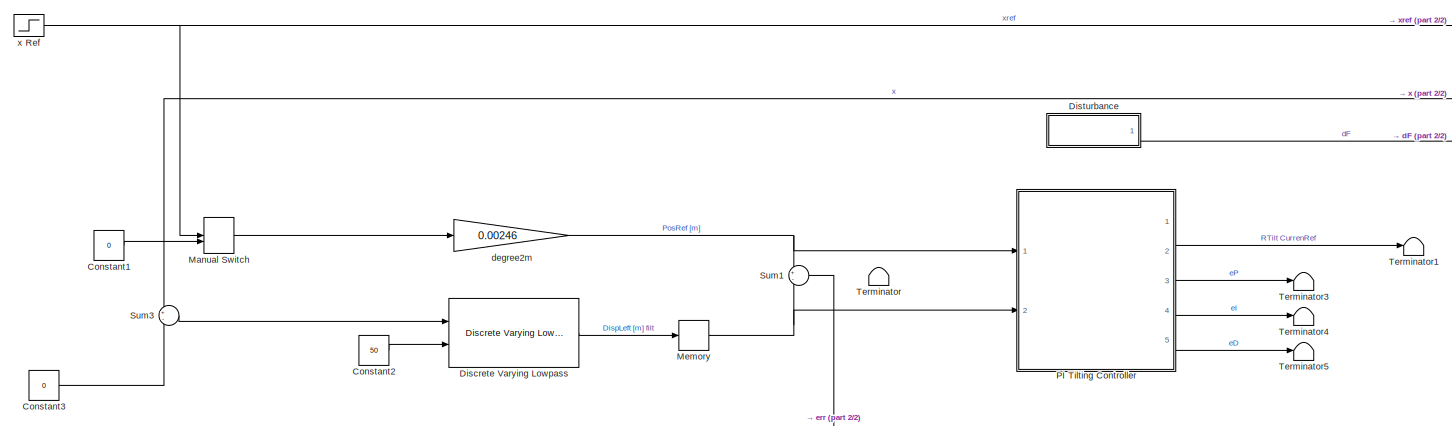
[diagram: root canvas - part 1/2, central region]
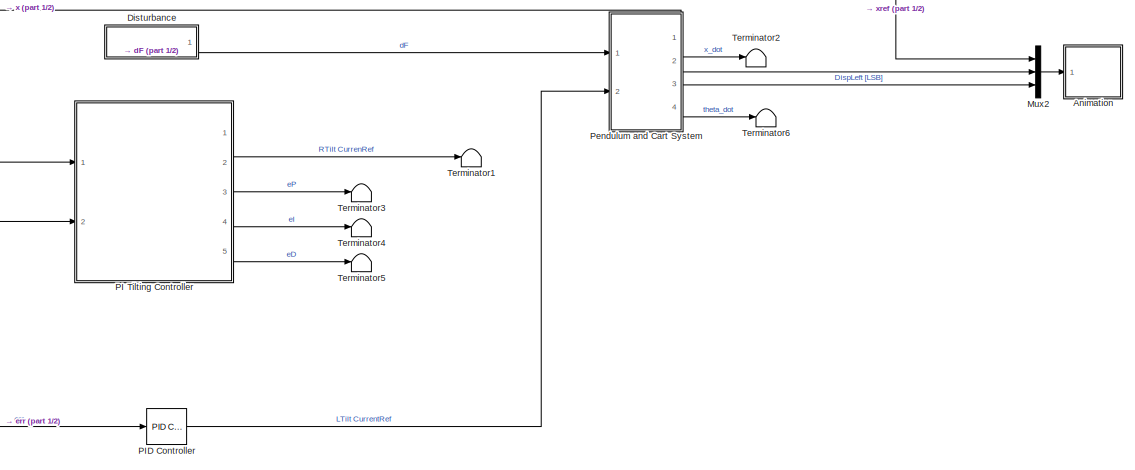
[diagram: root canvas - part 2/2, right side, full height]
MODEL slx_ad725aeea6b5
KIND model
CONFIG AbsTol = auto
CONFIG EnableMultiTasking = off
CONFIG FixedStep = 0.001
CONFIG MaxStep = auto
CONFIG MinStep = auto
CONFIG RelTol = 1e-3
CONFIG SampleTimeConstraint = Unconstrained
CONFIG Solver = ode5
CONFIG SolverName = ode5
CONFIG StartTime = 0.0
CONFIG StopTime = 50
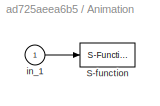
BLOCK [SubSystem] Animation
  Ports = [1]
  RequestExecContextInheritance = off
BLOCK [S-Function] Animation/S-function
  DeleteFcn = pendcartAnimation([],[],[],'DeleteBlock');
  EnableBusSupport = off
  FunctionName = pendcartAnimation
  Parameters = RefBlock
  Ports = [1]
  SFcnIsStateOwnerBlock = off
  SFunctionDeploymentMode = off
BLOCK [Inport] Animation/in_1
  IconDisplay = Port number
BLOCK [Constant] Constant1
  Value = 0
BLOCK [Constant] Constant2
  Value = 50
BLOCK [Constant] Constant3
  Value = 0
BLOCK [Reference] Discrete Varying Lowpass  REF=cstblocks/Linear Parameter Varying/Discrete Varying Lowpass
  Ports = [2, 1]
  SourceBlock = cstblocks/Linear Parameter Varying/Discrete Varying Lowpass
  SourceProductBaseCode = CT
  SourceProductName = Control System Toolbox
  SourceType = Discrete Varying Lowpass
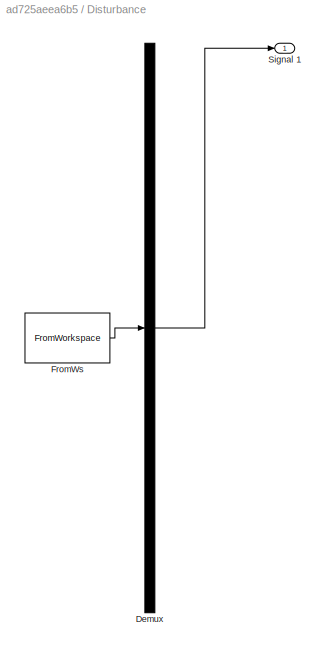
BLOCK [SubSystem] Disturbance
  ClipboardFcn = sigbuilder_block('clipboard');
  CloseFcn = sigbuilder_block('close');
  ContinueFcn = sigbuilder_block('continue');
  CopyFcn = sigbuilder_block('copy');
  DeleteFcn = sigbuilder_block('delete');
  LoadFcn = sigbuilder_block('load');
  MaskHideContents = on
  ModelCloseFcn = sigbuilder_block('modelClose');
  NameChangeFcn = sigbuilder_block('namechange');
  OpenFcn = sigbuilder_block('open',[402.828 199.862 551.172 395.379 ]);
  PauseFcn = sigbuilder_block('pause');
  Ports = [0, 1]
  PreSaveFcn = sigbuilder_block('preSave');
  RequestExecContextInheritance = off
  StartFcn = sigbuilder_block('start');
  StopFcn = sigbuilder_block('stop');
  Tag = STV Subsys
BLOCK [Demux] Disturbance/Demux
  Outputs = 1
  Ports = [1, 1]
  Tag = STV Demux
BLOCK [FromWorkspace] Disturbance/FromWs
  SampleTime = 0
  Tag = STV FromWs
  VariableName = tuvar
  ZeroCross = on
BLOCK [Outport] Disturbance/Signal 1
  IconDisplay = Port number
  Tag = STV Outport
BLOCK [ManualSwitch] Manual Switch
BLOCK [Memory] Memory
  InheritSampleTime = on
BLOCK [Mux] Mux2
  DisplayOption = bar
  Inputs = 3
  Ports = [3, 1]
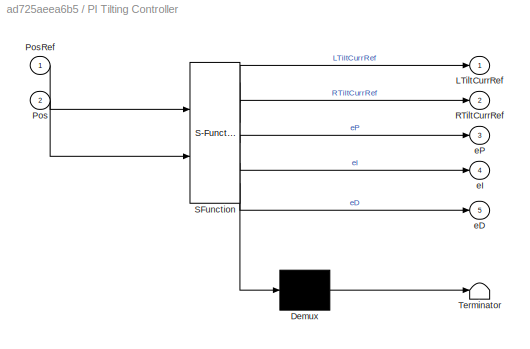
BLOCK [SubSystem] PI Tilting Controller
  Commented = on
  ErrorFcn = Stateflow.Translate.translate
  PermitHierarchicalResolution = ExplicitOnly
  Ports = [2, 5]
  RequestExecContextInheritance = off
  SFBlockType = MATLAB Function
  SystemSampleTime = 5e-3
  TreatAsAtomicUnit = on
BLOCK [Demux] PI Tilting Controller/ Demux 
  Outputs = 1
  Ports = [1, 1]
BLOCK [S-Function] PI Tilting Controller/ SFunction 
  EnableBusSupport = on
  FunctionName = sf_sfun
  PortCounts = [2 6]
  Ports = [2, 6]
  SFcnIsStateOwnerBlock = off
  SFunctionDeploymentMode = off
  Tag = Stateflow S-Function test_pendul 10
BLOCK [Terminator] PI Tilting Controller/ Terminator 
BLOCK [Outport] PI Tilting Controller/LTiltCurrRef
  IconDisplay = Port number
BLOCK [Inport] PI Tilting Controller/Pos
  IconDisplay = Port number
  Port = 2
BLOCK [Inport] PI Tilting Controller/PosRef
  IconDisplay = Port number
BLOCK [Outport] PI Tilting Controller/RTiltCurrRef
  IconDisplay = Port number
  Port = 2
BLOCK [Outport] PI Tilting Controller/eD
  IconDisplay = Port number
  Port = 5
BLOCK [Outport] PI Tilting Controller/eI
  IconDisplay = Port number
  Port = 4
BLOCK [Outport] PI Tilting Controller/eP
  IconDisplay = Port number
  Port = 3
BLOCK [Reference] PID Controller  REF=simulink/Continuous/PID Controller
  Ports = [1, 1]
  SourceBlock = simulink/Continuous/PID Controller
  SourceProductBaseCode = SL
  SourceProductName = Simulink
  SourceType = PID 1dof
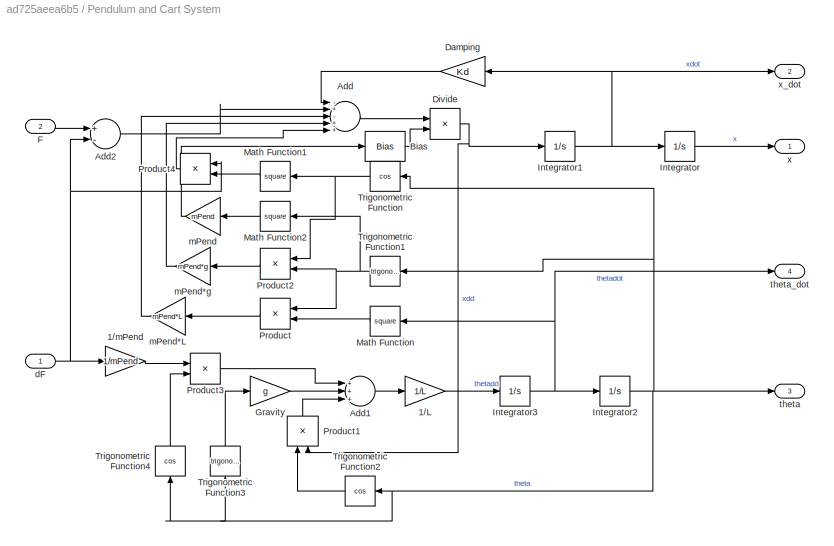
BLOCK [SubSystem] Pendulum and Cart System
  Ports = [2, 4]
  RequestExecContextInheritance = off
BLOCK [Gain] Pendulum and Cart System/1//L
  Gain = 1/L
  OutDataTypeStr = Inherit: Inherit via internal rule
  ParamDataTypeStr = Inherit: Inherit via internal rule
  SaturateOnIntegerOverflow = off
BLOCK [Gain] Pendulum and Cart System/1//mPend
  Gain = 1/mPend
  OutDataTypeStr = Inherit: Inherit via internal rule
  ParamDataTypeStr = Inherit: Inherit via internal rule
  SaturateOnIntegerOverflow = off
BLOCK [Sum] Pendulum and Cart System/Add
  InputSameDT = off
  Inputs = -+-++
  OutDataTypeStr = Inherit: Inherit via internal rule
  Ports = [5, 1]
  SaturateOnIntegerOverflow = off
BLOCK [Sum] Pendulum and Cart System/Add1
  InputSameDT = off
  Inputs = +++
  OutDataTypeStr = Inherit: Inherit via internal rule
  Ports = [3, 1]
  SaturateOnIntegerOverflow = off
BLOCK [Sum] Pendulum and Cart System/Add2
  InputSameDT = off
  Inputs = +-
  OutDataTypeStr = Inherit: Inherit via internal rule
  Ports = [2, 1]
  SaturateOnIntegerOverflow = off
BLOCK [Bias] Pendulum and Cart System/Bias
  Bias = mCart
  SaturateOnIntegerOverflow = off
BLOCK [Gain] Pendulum and Cart System/Damping
  Gain = Kd
  OutDataTypeStr = Inherit: Inherit via internal rule
  ParamDataTypeStr = Inherit: Inherit via internal rule
  SaturateOnIntegerOverflow = off
BLOCK [Product] Pendulum and Cart System/Divide
  InputSameDT = off
  Inputs = */
  OutDataTypeStr = Inherit: Inherit via internal rule
  Ports = [2, 1]
  RndMeth = Floor
  SaturateOnIntegerOverflow = off
BLOCK [Inport] Pendulum and Cart System/F
  IconDisplay = Port number
  Port = 2
BLOCK [Gain] Pendulum and Cart System/Gravity
  Gain = g
  OutDataTypeStr = Inherit: Inherit via internal rule
  ParamDataTypeStr = Inherit: Inherit via internal rule
  SaturateOnIntegerOverflow = off
BLOCK [Integrator] Pendulum and Cart System/Integrator
  ContinuousStateAttributes = 'x'
  Ports = [1, 1]
BLOCK [Integrator] Pendulum and Cart System/Integrator1
  ContinuousStateAttributes = 'xdot'
  Ports = [1, 1]
BLOCK [Integrator] Pendulum and Cart System/Integrator2
  ContinuousStateAttributes = 'theta'
  Ports = [1, 1]
BLOCK [Integrator] Pendulum and Cart System/Integrator3
  ContinuousStateAttributes = 'thetadot'
  Ports = [1, 1]
BLOCK [Math] Pendulum and Cart System/Math Function
  Operator = square
  Ports = [1, 1]
BLOCK [Math] Pendulum and Cart System/Math Function1
  Operator = square
  Ports = [1, 1]
BLOCK [Math] Pendulum and Cart System/Math Function2
  Operator = square
  Ports = [1, 1]
BLOCK [Product] Pendulum and Cart System/Product
  InputSameDT = off
  OutDataTypeStr = Inherit: Inherit via internal rule
  Ports = [2, 1]
  RndMeth = Floor
  SaturateOnIntegerOverflow = off
BLOCK [Product] Pendulum and Cart System/Product1
  InputSameDT = off
  OutDataTypeStr = Inherit: Inherit via internal rule
  Ports = [2, 1]
  RndMeth = Floor
  SaturateOnIntegerOverflow = off
BLOCK [Product] Pendulum and Cart System/Product2
  InputSameDT = off
  OutDataTypeStr = Inherit: Inherit via internal rule
  Ports = [2, 1]
  RndMeth = Floor
  SaturateOnIntegerOverflow = off
BLOCK [Product] Pendulum and Cart System/Product3
  InputSameDT = off
  OutDataTypeStr = Inherit: Inherit via internal rule
  Ports = [2, 1]
  RndMeth = Floor
  SaturateOnIntegerOverflow = off
BLOCK [Product] Pendulum and Cart System/Product4
  InputSameDT = off
  OutDataTypeStr = Inherit: Inherit via internal rule
  Ports = [2, 1]
  RndMeth = Floor
  SaturateOnIntegerOverflow = off
BLOCK [Trigonometry] Pendulum and Cart System/Trigonometric Function
  Operator = cos
  Ports = [1, 1]
BLOCK [Trigonometry] Pendulum and Cart System/Trigonometric Function1
  Ports = [1, 1]
BLOCK [Trigonometry] Pendulum and Cart System/Trigonometric Function2
  Operator = cos
  Ports = [1, 1]
BLOCK [Trigonometry] Pendulum and Cart System/Trigonometric Function3
  Ports = [1, 1]
BLOCK [Trigonometry] Pendulum and Cart System/Trigonometric Function4
  Operator = cos
  Ports = [1, 1]
BLOCK [Inport] Pendulum and Cart System/dF
  IconDisplay = Port number
BLOCK [Gain] Pendulum and Cart System/mPend
  Gain = mPend
  OutDataTypeStr = Inherit: Inherit via internal rule
  ParamDataTypeStr = Inherit: Inherit via internal rule
  SaturateOnIntegerOverflow = off
BLOCK [Gain] Pendulum and Cart System/mPend*L
  Gain = mPend*L
  OutDataTypeStr = Inherit: Inherit via internal rule
  ParamDataTypeStr = Inherit: Inherit via internal rule
  SaturateOnIntegerOverflow = off
BLOCK [Gain] Pendulum and Cart System/mPend*g
  Gain = mPend*g
  OutDataTypeStr = Inherit: Inherit via internal rule
  ParamDataTypeStr = Inherit: Inherit via internal rule
  SaturateOnIntegerOverflow = off
BLOCK [Outport] Pendulum and Cart System/theta
  IconDisplay = Port number
  Port = 3
BLOCK [Outport] Pendulum and Cart System/theta_dot
  IconDisplay = Port number
  Port = 4
BLOCK [Outport] Pendulum and Cart System/x
  IconDisplay = Port number
BLOCK [Outport] Pendulum and Cart System/x_dot
  IconDisplay = Port number
  Port = 2
BLOCK [Sum] Sum1
  IconShape = round
  InputSameDT = off
  Inputs = +-
  OutDataTypeStr = Inherit: Inherit via internal rule
  Ports = [2, 1]
  SaturateOnIntegerOverflow = off
BLOCK [Sum] Sum3
  IconShape = round
  InputSameDT = off
  Inputs = +-
  OutDataTypeStr = Inherit: Inherit via internal rule
  Ports = [2, 1]
  SaturateOnIntegerOverflow = off
BLOCK [Terminator] Terminator
BLOCK [Terminator] Terminator1
BLOCK [Terminator] Terminator2
BLOCK [Terminator] Terminator3
BLOCK [Terminator] Terminator4
BLOCK [Terminator] Terminator5
BLOCK [Terminator] Terminator6
BLOCK [Gain] degree2m
  Gain = 0.00246
  OutDataTypeStr = Inherit: Inherit via internal rule
  ParamDataTypeStr = Inherit: Inherit via internal rule
  SaturateOnIntegerOverflow = off
BLOCK [Step] x Ref
  After = 10
  SampleTime = 0
LINE Animation/in_1:1 -> Animation/S-function:1
LINE Constant1:1 -> Manual Switch:2
LINE Constant2:1 -> Discrete Varying Lowpass:2
LINE Constant3:1 -> Sum3:2
LINE Discrete Varying Lowpass:1 -> Memory:1
LINE Disturbance:1 -> Pendulum and Cart System:1
LINE Manual Switch:1 -> degree2m:1
NET Memory:1 -> PI Tilting Controller:2, Sum1:2
LINE Mux2:1 -> Animation:1
LINE PI Tilting Controller:2 -> Terminator1:1
LINE PI Tilting Controller:3 -> Terminator3:1
LINE PI Tilting Controller:4 -> Terminator4:1
LINE PI Tilting Controller:5 -> Terminator5:1
LINE PID Controller:1 -> Pendulum and Cart System:2
LINE Pendulum and Cart System/1//L:1 -> Pendulum and Cart System/Integrator3:1
LINE Pendulum and Cart System/1//mPend:1 -> Pendulum and Cart System/Product3:1
LINE Pendulum and Cart System/Add1:1 -> Pendulum and Cart System/1//L:1
LINE Pendulum and Cart System/Add2:1 -> Pendulum and Cart System/Add:2
LINE Pendulum and Cart System/Add:1 -> Pendulum and Cart System/Divide:1
LINE Pendulum and Cart System/Bias:1 -> Pendulum and Cart System/Divide:2
LINE Pendulum and Cart System/Damping:1 -> Pendulum and Cart System/Add:1
NET Pendulum and Cart System/Divide:1 -> Pendulum and Cart System/Integrator1:1, Pendulum and Cart System/Product1:2
LINE Pendulum and Cart System/F:1 -> Pendulum and Cart System/Add2:1
LINE Pendulum and Cart System/Gravity:1 -> Pendulum and Cart System/Add1:2
NET Pendulum and Cart System/Integrator1:1 -> Pendulum and Cart System/Damping:1, Pendulum and Cart System/Integrator:1, Pendulum and Cart System/x_dot:1
NET Pendulum and Cart System/Integrator2:1 -> Pendulum and Cart System/Trigonometric Function1:1, Pendulum and Cart System/Trigonometric Function2:1, Pendulum and Cart System/Trigonometric Function3:1, Pendulum and Cart System/Trigonometric Function4:1, Pendulum and Cart System/Trigonometric Function:1, Pendulum and Cart System/theta:1
NET Pendulum and Cart System/Integrator3:1 -> Pendulum and Cart System/Integrator2:1, Pendulum and Cart System/Math Function:1, Pendulum and Cart System/theta_dot:1
LINE Pendulum and Cart System/Integrator:1 -> Pendulum and Cart System/x:1
LINE Pendulum and Cart System/Math Function1:1 -> Pendulum and Cart System/Product4:2
LINE Pendulum and Cart System/Math Function2:1 -> Pendulum and Cart System/mPend:1
LINE Pendulum and Cart System/Math Function:1 -> Pendulum and Cart System/Product:2
LINE Pendulum and Cart System/Product1:1 -> Pendulum and Cart System/Add1:3
LINE Pendulum and Cart System/Product2:1 -> Pendulum and Cart System/mPend*g:1
LINE Pendulum and Cart System/Product3:1 -> Pendulum and Cart System/Add1:1
LINE Pendulum and Cart System/Product4:1 -> Pendulum and Cart System/Add:5
LINE Pendulum and Cart System/Product:1 -> Pendulum and Cart System/mPend*L:1
NET Pendulum and Cart System/Trigonometric Function1:1 -> Pendulum and Cart System/Math Function2:1, Pendulum and Cart System/Product2:2, Pendulum and Cart System/Product:1
LINE Pendulum and Cart System/Trigonometric Function2:1 -> Pendulum and Cart System/Product1:1
LINE Pendulum and Cart System/Trigonometric Function3:1 -> Pendulum and Cart System/Gravity:1
LINE Pendulum and Cart System/Trigonometric Function4:1 -> Pendulum and Cart System/Product3:2
NET Pendulum and Cart System/Trigonometric Function:1 -> Pendulum and Cart System/Math Function1:1, Pendulum and Cart System/Product2:1
NET Pendulum and Cart System/dF:1 -> Pendulum and Cart System/1//mPend:1, Pendulum and Cart System/Add2:2, Pendulum and Cart System/Product4:1
LINE Pendulum and Cart System/mPend*L:1 -> Pendulum and Cart System/Add:3
LINE Pendulum and Cart System/mPend*g:1 -> Pendulum and Cart System/Add:4
LINE Pendulum and Cart System/mPend:1 -> Pendulum and Cart System/Bias:1
NET Pendulum and Cart System:1 -> Mux2:2, Sum3:1
LINE Pendulum and Cart System:2 -> Terminator2:1
LINE Pendulum and Cart System:3 -> Mux2:3
LINE Pendulum and Cart System:4 -> Terminator6:1
LINE Sum1:1 -> PID Controller:1
LINE Sum3:1 -> Discrete Varying Lowpass:1
NET degree2m:1 -> PI Tilting Controller:1, Sum1:1
NET x Ref:1 -> Manual Switch:1, Mux2:1
note: NET lines group one-source signal fan-out (src -> all destinations, sorted); 1:1 wires keep LINE
CHART PI Tilting Controller states=1 transitions=1
  STATE_LABEL 'eML_blk_kernel()'
  STATE_LABEL 'SCRIPT:\nfunction [LTiltCurrRef, RTiltCurrRef,eP,eI,eD] = fcn(PosRef,Pos)\npersistent uk1 ek1 ek2\nif (isempty(uk1))\n    uk1 = 0;\n    ek1 = 0;\n    ek2 = 0;\nend\n\n% +/- 0.076 m\npos_lim = 0.02;\nimax = 5;\n\nKp =20;\nKi = 0.1;\nKd = 10;\n\nif (PosRef > pos_lim)\n    PosRef = pos_lim;\nend\nif (PosRef <- pos_lim)\n   PosRef = -pos_lim;\nend\n\ne = PosRef - Pos;\n\n\nDu = Ki * e + Kp * (e - ek1) + Kd * (e - 2*ek1 + ek2);\n...<+208ch>'
